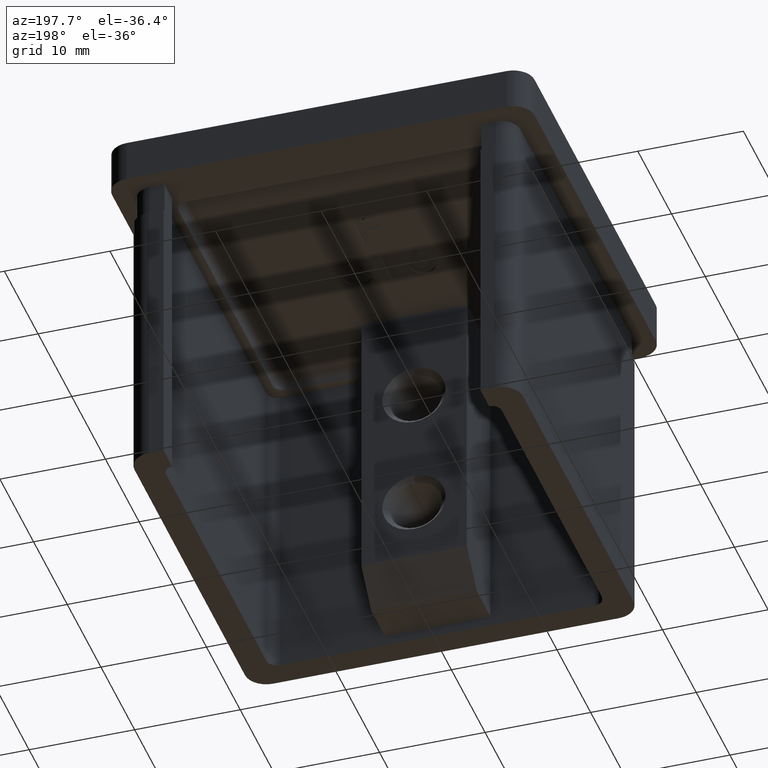
[diagram: clean part render]
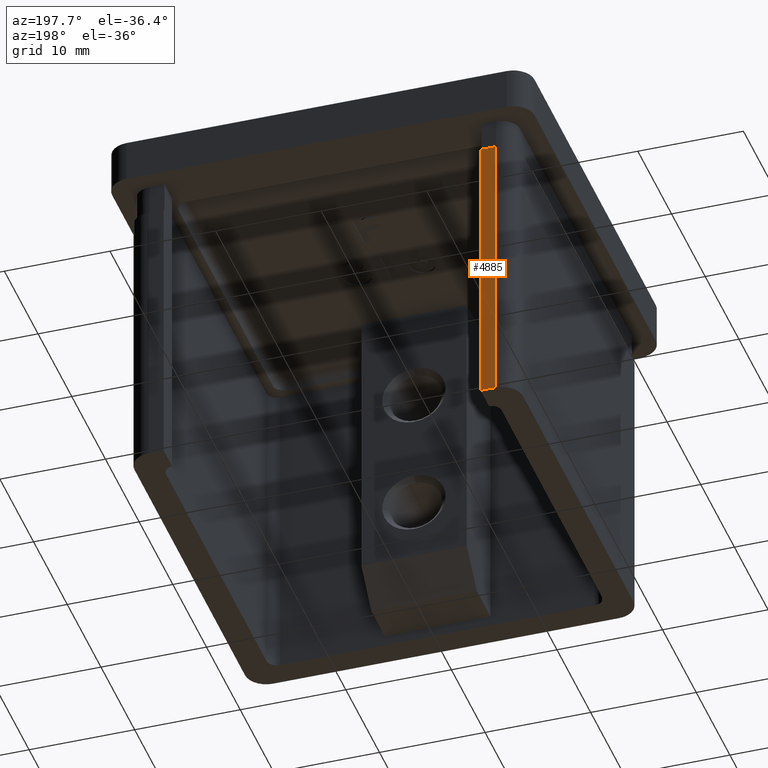
[diagram: same view with one face highlighted and labeled with its STEP entity id]
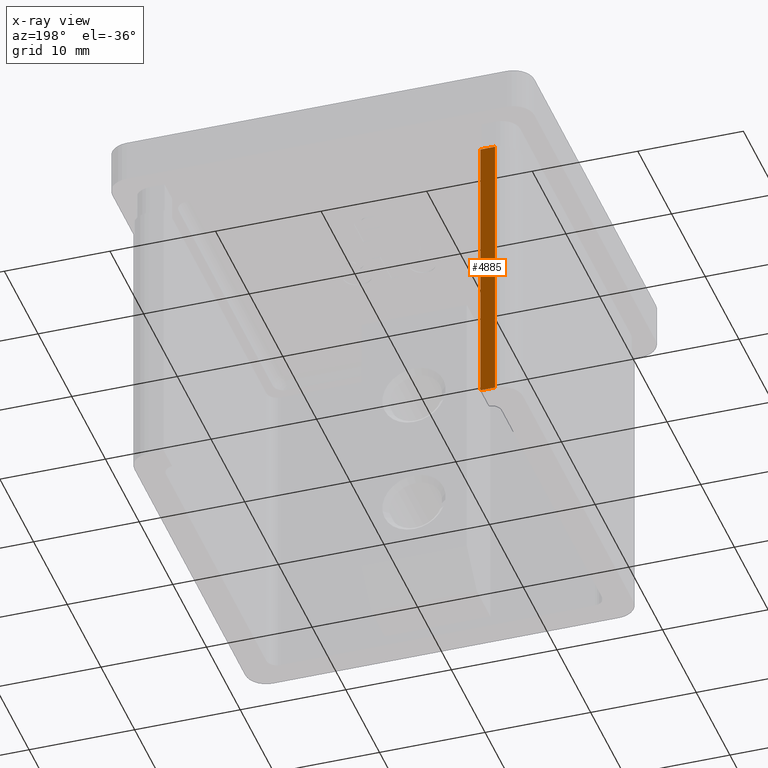
[diagram: x-ray of the same camera — body ghosted, the highlighted face saturated]
A machine part, auxiliary view. The second image highlights one B-rep face of the part: STEP entity #4885.
The next image is the same camera in x-ray: the body ghosted, the highlighted face saturated — about 0% of this face is hidden behind the body in this view.
In plain terms, the highlighted planar face has unit normal (0, -1, -0).
Its self-contained STEP definition (entity closure, byte-faithful):
#427 = CARTESIAN_POINT ( 'NONE',  ( -16.39999999999999858, 18.39999999999999858, -7.000000000000001776 ) ) ;
#2057 = VECTOR ( 'NONE', #13273, 1000.000000000000000 ) ;
#2532 = DIRECTION ( 'NONE',  ( 0.000000000000000000, -1.000000000000000000, -0.000000000000000000 ) ) ;
#2919 = ORIENTED_EDGE ( 'NONE', *, *, #14240, .F. ) ;
#3096 = CARTESIAN_POINT ( 'NONE',  ( -15.00000000000000000, 18.39999999999999858, -34.00000000000000000 ) ) ;
#3472 = ORIENTED_EDGE ( 'NONE', *, *, #4541, .F. ) ;
#4150 = DIRECTION ( 'NONE',  ( 1.000000000000000000, -0.000000000000000000, -0.000000000000000000 ) ) ;
#4511 = LINE ( 'NONE', #5780, #15179 ) ;
#4541 = EDGE_CURVE ( 'NONE', #10151, #15820, #4511, .T. ) ;
#4832 = LINE ( 'NONE', #3096, #2057 ) ;
#4836 = DIRECTION ( 'NONE',  ( -0.000000000000000000, -0.000000000000000000, 1.000000000000000000 ) ) ;
#4885 = ADVANCED_FACE ( 'NONE', ( #6860 ), #16366, .F. ) ;
#5430 = EDGE_CURVE ( 'NONE', #10151, #9489, #4832, .T. ) ;
#5780 = CARTESIAN_POINT ( 'NONE',  ( -10.00000000000000000, 18.39999999999999858, -6.999999999999999112 ) ) ;
#6010 = CARTESIAN_POINT ( 'NONE',  ( -16.39999999999999858, 18.39999999999999858, -34.00000000000000000 ) ) ;
#6860 = FACE_OUTER_BOUND ( 'NONE', #12464, .T. ) ;
#7421 = CARTESIAN_POINT ( 'NONE',  ( -15.00000000000000000, 18.39999999999999858, -7.000000000000004441 ) ) ;
#7593 = ORIENTED_EDGE ( 'NONE', *, *, #8150, .T. ) ;
#8150 = EDGE_CURVE ( 'NONE', #12794, #15820, #13489, .T. ) ;
#9442 = DIRECTION ( 'NONE',  ( -1.000000000000000000, 0.000000000000000000, 0.000000000000000000 ) ) ;
#9489 = VERTEX_POINT ( 'NONE', #15648 ) ;
#9520 = VECTOR ( 'NONE', #4836, 1000.000000000000000 ) ;
#10121 = CARTESIAN_POINT ( 'NONE',  ( -10.00000000000000000, 18.39999999999999858, -34.00000000000000000 ) ) ;
#10151 = VERTEX_POINT ( 'NONE', #7421 ) ;
#10587 = ORIENTED_EDGE ( 'NONE', *, *, #5430, .T. ) ;
#11637 = CARTESIAN_POINT ( 'NONE',  ( -10.00000000000000000, 18.39999999999999858, -34.00000000000000000 ) ) ;
#11826 = VECTOR ( 'NONE', #4150, 1000.000000000000000 ) ;
#12464 = EDGE_LOOP ( 'NONE', ( #3472, #10587, #2919, #7593 ) ) ;
#12794 = VERTEX_POINT ( 'NONE', #6010 ) ;
#13273 = DIRECTION ( 'NONE',  ( 0.000000000000000000, 0.000000000000000000, -1.000000000000000000 ) ) ;
#13489 = LINE ( 'NONE', #14849, #9520 ) ;
#13910 = DIRECTION ( 'NONE',  ( 0.000000000000000000, 0.000000000000000000, -1.000000000000000000 ) ) ;
#14240 = EDGE_CURVE ( 'NONE', #12794, #9489, #15177, .T. ) ;
#14735 = AXIS2_PLACEMENT_3D ( 'NONE', #10121, #2532, #13910 ) ;
#14849 = CARTESIAN_POINT ( 'NONE',  ( -16.39999999999999858, 18.39999999999999858, -34.00000000000000000 ) ) ;
#15177 = LINE ( 'NONE', #11637, #11826 ) ;
#15179 = VECTOR ( 'NONE', #9442, 1000.000000000000000 ) ;
#15648 = CARTESIAN_POINT ( 'NONE',  ( -15.00000000000000000, 18.39999999999999858, -34.00000000000000000 ) ) ;
#15820 = VERTEX_POINT ( 'NONE', #427 ) ;
#16366 = PLANE ( 'NONE',  #14735 ) ;